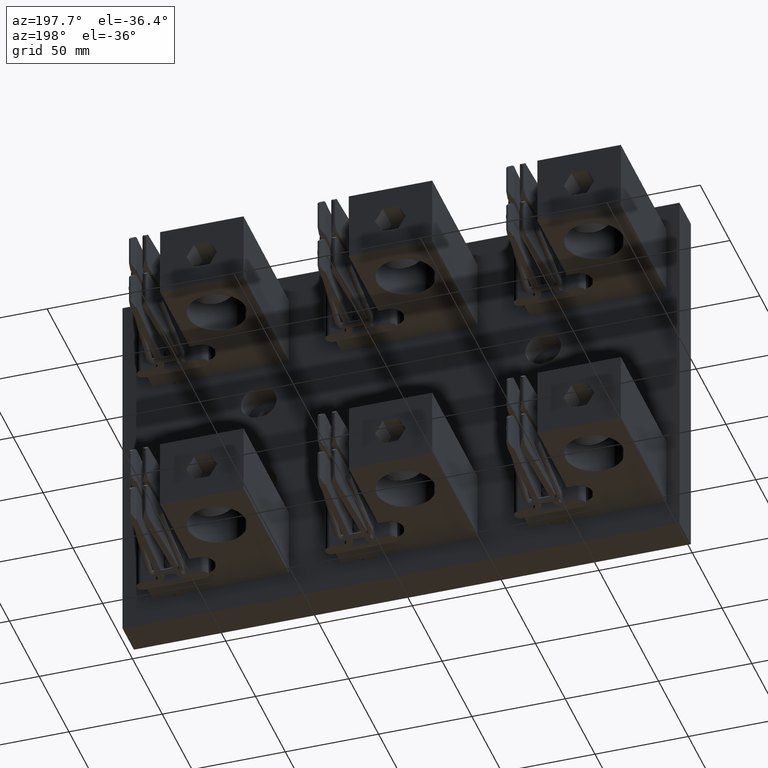
[diagram: clean part render]
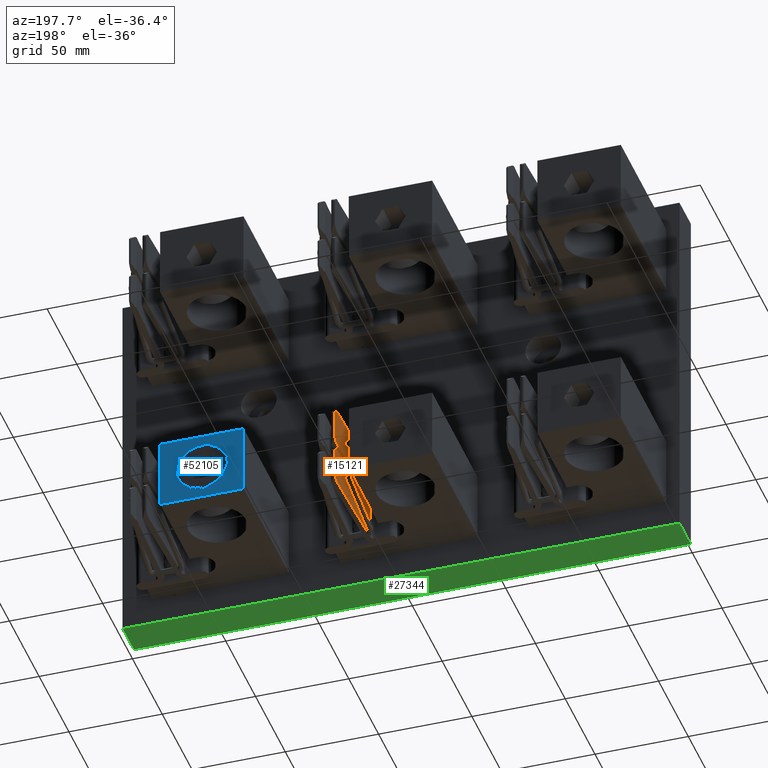
[diagram: same view with three faces highlighted in distinct colors, each labeled with its STEP entity id]
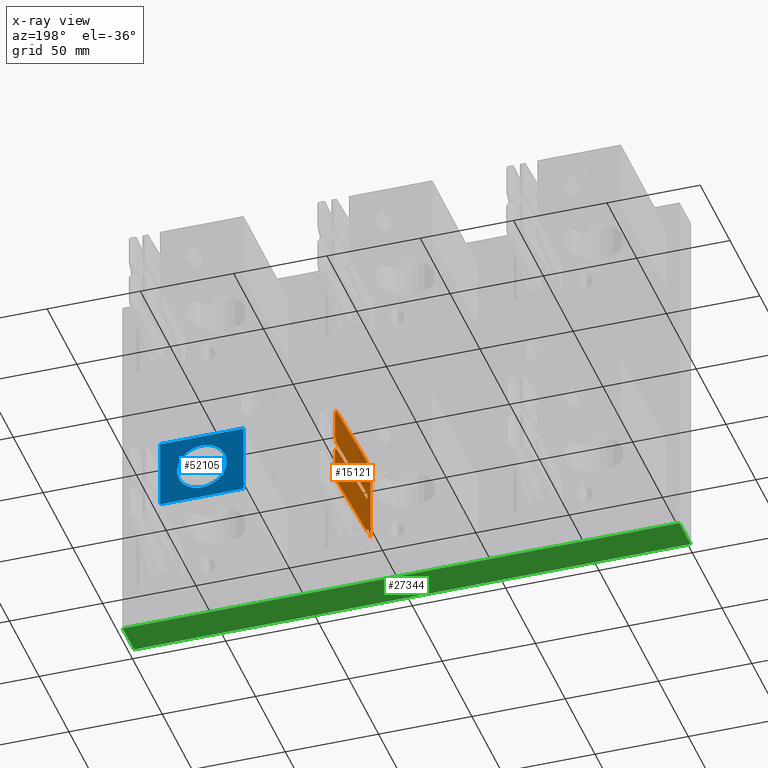
[diagram: x-ray of the same camera — body ghosted, the three highlighted faces saturated]
A machine part, auxiliary view with three faces highlighted in distinct colors.
The next image is the same camera in x-ray (body ghosted, the three faces saturated) — at least one of them is partly hidden behind the body in this view.
Their STEP definitions:

[orange] entity #15121 — the highlighted planar face has unit normal (0.9994, -0.0353, 0).
#344 = VECTOR ( 'NONE', #70280, 39.37007874015748100 ) ;
#1004 = CARTESIAN_POINT ( 'NONE',  ( 0.3907362016212907500, 1.781000000000000100, -1.775000000000034800 ) ) ;
#1033 = ORIENTED_EDGE ( 'NONE', *, *, #25767, .F. ) ;
#3256 = CARTESIAN_POINT ( 'NONE',  ( 0.3919719498710013700, 1.816000000000000300, -2.719000000000034500 ) ) ;
#3266 = CARTESIAN_POINT ( 'NONE',  ( 0.3829607690644798400, 1.560777038280820800, -1.775000000000035000 ) ) ;
#4341 = ORIENTED_EDGE ( 'NONE', *, *, #36690, .T. ) ;
#4421 = EDGE_CURVE ( 'NONE', #34799, #20561, #51824, .T. ) ;
#8850 = VERTEX_POINT ( 'NONE', #38776 ) ;
#9088 = CARTESIAN_POINT ( 'NONE',  ( 0.4579609064050201800, 3.685000000000000500, -2.819000000000033700 ) ) ;
#10812 = VECTOR ( 'NONE', #71252, 39.37007874015748900 ) ;
#10904 = VECTOR ( 'NONE', #50974, 39.37007874015748900 ) ;
#10925 = CARTESIAN_POINT ( 'NONE',  ( 0.4544301971201599700, 3.585000000000000000, -2.719000000000034100 ) ) ;
#11298 = CARTESIAN_POINT ( 'NONE',  ( 0.3919719498709998700, 1.816000000000000100, -2.581000000000035000 ) ) ;
#11306 = VECTOR ( 'NONE', #12172, 39.37007874015748100 ) ;
#11329 = EDGE_CURVE ( 'NONE', #12467, #17070, #37583, .T. ) ;
#11361 = DIRECTION ( 'NONE',  ( -1.047444401652940000E-014, -0.0000000000000000000, 1.000000000000000000 ) ) ;
#11364 = VECTOR ( 'NONE', #20186, 39.37007874015748100 ) ;
#11374 = VERTEX_POINT ( 'NONE', #11298 ) ;
#12172 = DIRECTION ( 'NONE',  ( 0.02495810785192913200, 0.7068865159459675200, -0.7068865159459634100 ) ) ;
#12467 = VERTEX_POINT ( 'NONE', #56773 ) ;
#13032 = VECTOR ( 'NONE', #47612, 39.37007874015748900 ) ;
#13338 = CARTESIAN_POINT ( 'NONE',  ( 0.3829607690644981600, 1.560777038280820800, -3.525000000000034600 ) ) ;
#14703 = DIRECTION ( 'NONE',  ( 0.03528510665364335800, 0.9993772867383173800, 2.463408634201292000E-016 ) ) ;
#15077 = LINE ( 'NONE', #41556, #13032 ) ;
#15121 = ADVANCED_FACE ( 'NONE', ( #81225 ), #76109, .F. ) ;
#15135 = VERTEX_POINT ( 'NONE', #76931 ) ;
#15470 = LINE ( 'NONE', #26619, #32519 ) ;
#16398 = CARTESIAN_POINT ( 'NONE',  ( 0.3907362016213070700, 1.780999999999999900, -3.337000000000034800 ) ) ;
#17070 = VERTEX_POINT ( 'NONE', #10925 ) ;
#17544 = VERTEX_POINT ( 'NONE', #50888 ) ;
#18912 = LINE ( 'NONE', #24043, #33954 ) ;
#19295 = CARTESIAN_POINT ( 'NONE',  ( 0.4579609064050275700, 3.685000000000000500, -3.525000000000034100 ) ) ;
#20186 = DIRECTION ( 'NONE',  ( -0.03528510665364335800, -0.9993772867383173800, -4.928428851015836000E-016 ) ) ;
#20225 = LINE ( 'NONE', #13338, #37278 ) ;
#20561 = VERTEX_POINT ( 'NONE', #41010 ) ;
#22854 = CARTESIAN_POINT ( 'NONE',  ( 0.3840984681657718700, 1.593000000000000200, -3.337000000000034800 ) ) ;
#23418 = CARTESIAN_POINT ( 'NONE',  ( 0.4579609064050092500, 3.685000000000000500, -1.775000000000033900 ) ) ;
#23650 = CARTESIAN_POINT ( 'NONE',  ( 0.4579609064050275700, 3.685000000000000500, -3.525000000000034100 ) ) ;
#24043 = CARTESIAN_POINT ( 'NONE',  ( 0.4579609064050275700, 3.685000000000000500, -3.525000000000034100 ) ) ;
#25767 = EDGE_CURVE ( 'NONE', #76533, #63595, #82778, .T. ) ;
#25776 = DIRECTION ( 'NONE',  ( -0.03528510665364335100, -0.9993772867383173800, -3.695918742608563300E-016 ) ) ;
#26258 = ORIENTED_EDGE ( 'NONE', *, *, #35913, .T. ) ;
#26619 = CARTESIAN_POINT ( 'NONE',  ( 0.4541524240130747100, 3.577132654243585700, -3.532867345756449200 ) ) ;
#26738 = ORIENTED_EDGE ( 'NONE', *, *, #56108, .T. ) ;
#28405 = LINE ( 'NONE', #29322, #11306 ) ;
#28564 = ORIENTED_EDGE ( 'NONE', *, *, #76605, .F. ) ;
#28799 = CARTESIAN_POINT ( 'NONE',  ( 0.3870995710578942200, 1.678000000000001000, -2.581000000000035500 ) ) ;
#29322 = CARTESIAN_POINT ( 'NONE',  ( 0.4579609064050201800, 3.685000000000000500, -2.819000000000033700 ) ) ;
#30133 = ORIENTED_EDGE ( 'NONE', *, *, #36211, .T. ) ;
#31990 = CARTESIAN_POINT ( 'NONE',  ( 0.4579609064050275700, 3.685000000000000500, -3.525000000000034100 ) ) ;
#32244 =( BOUNDED_CURVE ( )  B_SPLINE_CURVE ( 3, ( #61180, #16398, #22854, #67605 ),
 .UNSPECIFIED., .F., .T. ) 
 B_SPLINE_CURVE_WITH_KNOTS ( ( 4, 4 ),
 ( 0.0000000000000000000, 3.141592653589792700 ),
 .UNSPECIFIED. ) 
 CURVE ( )  GEOMETRIC_REPRESENTATION_ITEM ( )  RATIONAL_B_SPLINE_CURVE ( ( 1.000000000000000000, 0.3333333333333335400, 0.3333333333333335400, 1.000000000000000000 ) ) 
 REPRESENTATION_ITEM ( '' )  );
#32519 = VECTOR ( 'NONE', #64942, 39.37007874015748900 ) ;
#32973 = CARTESIAN_POINT ( 'NONE',  ( 0.4540786095160803700, 3.575042012079955100, -2.590957987920078600 ) ) ;
#33842 = VECTOR ( 'NONE', #68420, 39.37007874015748900 ) ;
#33954 = VECTOR ( 'NONE', #11361, 39.37007874015748100 ) ;
#34586 = ORIENTED_EDGE ( 'NONE', *, *, #68956, .T. ) ;
#34799 = VERTEX_POINT ( 'NONE', #51899 ) ;
#34800 = ORIENTED_EDGE ( 'NONE', *, *, #62272, .T. ) ;
#35913 = EDGE_CURVE ( 'NONE', #15135, #17544, #15470, .T. ) ;
#36211 = EDGE_CURVE ( 'NONE', #17070, #45397, #28405, .T. ) ;
#36332 = CARTESIAN_POINT ( 'NONE',  ( 0.4579609064050191300, 3.685000000000000500, -2.719000000000034100 ) ) ;
#36690 = EDGE_CURVE ( 'NONE', #8850, #34799, #41305, .T. ) ;
#37278 = VECTOR ( 'NONE', #45810, 39.37007874015748100 ) ;
#37583 = LINE ( 'NONE', #36332, #52524 ) ;
#38776 = CARTESIAN_POINT ( 'NONE',  ( 0.3907362016212907500, 1.781000000000000100, -1.775000000000034800 ) ) ;
#39062 = EDGE_CURVE ( 'NONE', #46689, #61378, #76966, .T. ) ;
#39422 = CARTESIAN_POINT ( 'NONE',  ( 0.3907362016212927400, 1.780999999999999900, -1.963000000000034100 ) ) ;
#41010 = CARTESIAN_POINT ( 'NONE',  ( 0.4579609064050102500, 3.685000000000000500, -1.875000000000034400 ) ) ;
#41305 = LINE ( 'NONE', #23418, #58302 ) ;
#41556 = CARTESIAN_POINT ( 'NONE',  ( 0.4579609064050092500, 3.685000000000000500, -1.775000000000033900 ) ) ;
#41738 = CARTESIAN_POINT ( 'NONE',  ( 0.3870995710578957200, 1.678000000000001000, -2.719000000000034500 ) ) ;
#42925 = CARTESIAN_POINT ( 'NONE',  ( 0.4579609064050102500, 3.685000000000000500, -1.875000000000034400 ) ) ;
#43483 = DIRECTION ( 'NONE',  ( 0.02495810785192905900, 0.7068865159459655200, -0.7068865159459653000 ) ) ;
#43944 = ORIENTED_EDGE ( 'NONE', *, *, #60796, .F. ) ;
#44055 = EDGE_CURVE ( 'NONE', #55925, #63595, #32244, .T. ) ;
#44146 = VERTEX_POINT ( 'NONE', #56954 ) ;
#44363 = CARTESIAN_POINT ( 'NONE',  ( 0.4544301971201585300, 3.584999999999999500, -2.581000000000034200 ) ) ;
#45397 = VERTEX_POINT ( 'NONE', #9088 ) ;
#45810 = DIRECTION ( 'NONE',  ( -1.047444401652940000E-014, -0.0000000000000000000, 1.000000000000000000 ) ) ;
#46033 =( BOUNDED_CURVE ( )  B_SPLINE_CURVE ( 3, ( #58454, #64880, #39422, #1004 ),
 .UNSPECIFIED., .F., .T. ) 
 B_SPLINE_CURVE_WITH_KNOTS ( ( 4, 4 ),
 ( 3.141592653589795300, 6.283185307179586200 ),
 .UNSPECIFIED. ) 
 CURVE ( )  GEOMETRIC_REPRESENTATION_ITEM ( )  RATIONAL_B_SPLINE_CURVE ( ( 1.000000000000000000, 0.3333333333333341500, 0.3333333333333341500, 1.000000000000000000 ) ) 
 REPRESENTATION_ITEM ( '' )  );
#46493 = ORIENTED_EDGE ( 'NONE', *, *, #50702, .F. ) ;
#46689 = VERTEX_POINT ( 'NONE', #56231 ) ;
#47140 = ORIENTED_EDGE ( 'NONE', *, *, #68837, .T. ) ;
#47612 = DIRECTION ( 'NONE',  ( 0.03528510665364335100, 0.9993772867383173800, 3.695918742608563300E-016 ) ) ;
#48778 = VECTOR ( 'NONE', #43483, 39.37007874015748900 ) ;
#50571 = CARTESIAN_POINT ( 'NONE',  ( 0.3907362016213090600, 1.781000000000000100, -3.525000000000034600 ) ) ;
#50702 = EDGE_CURVE ( 'NONE', #46689, #20561, #66525, .T. ) ;
#50888 = CARTESIAN_POINT ( 'NONE',  ( 0.4544301971201683600, 3.585000000000000000, -3.525000000000034100 ) ) ;
#50974 = DIRECTION ( 'NONE',  ( 0.03528510665364335100, 0.9993772867383173800, 3.695918742608563300E-016 ) ) ;
#51717 = ORIENTED_EDGE ( 'NONE', *, *, #39062, .T. ) ;
#51824 = LINE ( 'NONE', #42925, #48778 ) ;
#51899 = CARTESIAN_POINT ( 'NONE',  ( 0.4544301971201500400, 3.585000000000000000, -1.775000000000033900 ) ) ;
#52524 = VECTOR ( 'NONE', #14703, 39.37007874015748100 ) ;
#55925 = VERTEX_POINT ( 'NONE', #50571 ) ;
#56108 = EDGE_CURVE ( 'NONE', #44146, #8850, #46033, .T. ) ;
#56231 = CARTESIAN_POINT ( 'NONE',  ( 0.4579609064050166300, 3.685000000000000500, -2.481000000000032700 ) ) ;
#56591 = ORIENTED_EDGE ( 'NONE', *, *, #11329, .T. ) ;
#56773 = CARTESIAN_POINT ( 'NONE',  ( 0.3919719498710013700, 1.816000000000000300, -2.719000000000034500 ) ) ;
#56954 = CARTESIAN_POINT ( 'NONE',  ( 0.3840984681657554400, 1.593000000000000000, -1.775000000000035000 ) ) ;
#57185 = CARTESIAN_POINT ( 'NONE',  ( 0.3829607690644981600, 1.560777038280820800, -3.525000000000034600 ) ) ;
#58302 = VECTOR ( 'NONE', #67912, 39.37007874015748900 ) ;
#58454 = CARTESIAN_POINT ( 'NONE',  ( 0.3840984681657554400, 1.593000000000000000, -1.775000000000035000 ) ) ;
#58628 = VERTEX_POINT ( 'NONE', #3266 ) ;
#60796 = EDGE_CURVE ( 'NONE', #15135, #45397, #18912, .T. ) ;
#61180 = CARTESIAN_POINT ( 'NONE',  ( 0.3907362016213090600, 1.781000000000000100, -3.525000000000034600 ) ) ;
#61378 = VERTEX_POINT ( 'NONE', #44363 ) ;
#62272 = EDGE_CURVE ( 'NONE', #61378, #11374, #77520, .T. ) ;
#63595 = VERTEX_POINT ( 'NONE', #70170 ) ;
#64081 = DIRECTION ( 'NONE',  ( 0.9993772867383173800, -0.03528510665364335100, 1.046792144133155300E-014 ) ) ;
#64555 =( BOUNDED_CURVE ( )  B_SPLINE_CURVE ( 3, ( #73580, #28799, #41738, #3256 ),
 .UNSPECIFIED., .F., .T. ) 
 B_SPLINE_CURVE_WITH_KNOTS ( ( 4, 4 ),
 ( 1.570796326794900600, 4.712388980384689700 ),
 .UNSPECIFIED. ) 
 CURVE ( )  GEOMETRIC_REPRESENTATION_ITEM ( )  RATIONAL_B_SPLINE_CURVE ( ( 1.000000000000000000, 0.3333333333333347000, 0.3333333333333347000, 1.000000000000000000 ) ) 
 REPRESENTATION_ITEM ( '' )  );
#64880 = CARTESIAN_POINT ( 'NONE',  ( 0.3840984681657575500, 1.593000000000000400, -1.963000000000034500 ) ) ;
#64942 = DIRECTION ( 'NONE',  ( -0.02495810785191422300, -0.7068865159459646300, -0.7068865159459667400 ) ) ;
#64974 = CARTESIAN_POINT ( 'NONE',  ( 0.4579609064050176300, 3.685000000000000500, -2.581000000000034200 ) ) ;
#66525 = LINE ( 'NONE', #76750, #344 ) ;
#67605 = CARTESIAN_POINT ( 'NONE',  ( 0.3840984681657737500, 1.593000000000000000, -3.525000000000034600 ) ) ;
#67912 = DIRECTION ( 'NONE',  ( 0.03528510665364335100, 0.9993772867383173800, 3.695918742608563300E-016 ) ) ;
#68420 = DIRECTION ( 'NONE',  ( 0.03528510665364335100, 0.9993772867383173800, 3.695918742608563300E-016 ) ) ;
#68837 = EDGE_CURVE ( 'NONE', #11374, #12467, #64555, .T. ) ;
#68956 = EDGE_CURVE ( 'NONE', #76533, #58628, #20225, .T. ) ;
#70170 = CARTESIAN_POINT ( 'NONE',  ( 0.3840984681657737500, 1.593000000000000000, -3.525000000000034600 ) ) ;
#70280 = DIRECTION ( 'NONE',  ( -1.047444401652940000E-014, -0.0000000000000000000, 1.000000000000000000 ) ) ;
#70700 = EDGE_LOOP ( 'NONE', ( #4341, #73709, #46493, #51717, #34800, #47140, #56591, #30133, #43944, #26258, #28564, #82506, #1033, #34586, #82578, #26738 ) ) ;
#71252 = DIRECTION ( 'NONE',  ( -0.02495810785191421600, -0.7068865159459646300, -0.7068865159459667400 ) ) ;
#72796 = EDGE_CURVE ( 'NONE', #58628, #44146, #15077, .T. ) ;
#73580 = CARTESIAN_POINT ( 'NONE',  ( 0.3919719498709998700, 1.816000000000000100, -2.581000000000035000 ) ) ;
#73709 = ORIENTED_EDGE ( 'NONE', *, *, #4421, .T. ) ;
#75726 = AXIS2_PLACEMENT_3D ( 'NONE', #19295, #64081, #25776 ) ;
#76109 = PLANE ( 'NONE',  #75726 ) ;
#76533 = VERTEX_POINT ( 'NONE', #57185 ) ;
#76605 = EDGE_CURVE ( 'NONE', #55925, #17544, #79018, .T. ) ;
#76750 = CARTESIAN_POINT ( 'NONE',  ( 0.4579609064050275700, 3.685000000000000500, -3.525000000000034100 ) ) ;
#76931 = CARTESIAN_POINT ( 'NONE',  ( 0.4579609064050265100, 3.685000000000000500, -3.425000000000033600 ) ) ;
#76966 = LINE ( 'NONE', #32973, #10812 ) ;
#77520 = LINE ( 'NONE', #64974, #11364 ) ;
#79018 = LINE ( 'NONE', #31990, #10904 ) ;
#81225 = FACE_OUTER_BOUND ( 'NONE', #70700, .T. ) ;
#82506 = ORIENTED_EDGE ( 'NONE', *, *, #44055, .T. ) ;
#82578 = ORIENTED_EDGE ( 'NONE', *, *, #72796, .T. ) ;
#82778 = LINE ( 'NONE', #23650, #33842 ) ;

[blue] entity #52105 — the highlighted planar face has unit normal (0, -1, 0).
#1489 = EDGE_CURVE ( 'NONE', #71809, #71809, #80337, .T. ) ;
#7381 = EDGE_CURVE ( 'NONE', #48201, #11645, #53351, .T. ) ;
#8772 = EDGE_LOOP ( 'NONE', ( #50706, #33810, #26646, #48400 ) ) ;
#11645 = VERTEX_POINT ( 'NONE', #64523 ) ;
#13812 = VERTEX_POINT ( 'NONE', #72711 ) ;
#15142 = VECTOR ( 'NONE', #22915, 39.37007874015748100 ) ;
#20723 = CARTESIAN_POINT ( 'NONE',  ( 2.721549999999999700, 3.750000000000001300, -2.650000000000000800 ) ) ;
#21355 = VECTOR ( 'NONE', #47354, 39.37007874015748100 ) ;
#21801 = CARTESIAN_POINT ( 'NONE',  ( 4.124999999999999100, 3.750000000000001300, -1.900000000000000800 ) ) ;
#22507 = CARTESIAN_POINT ( 'NONE',  ( 2.364999999999999300, 3.750000000000000900, -1.900000000000001200 ) ) ;
#22915 = DIRECTION ( 'NONE',  ( -1.000000000000000000, -3.104372720073025900E-016, -3.196228004487266600E-016 ) ) ;
#24370 = FACE_OUTER_BOUND ( 'NONE', #8772, .T. ) ;
#26646 = ORIENTED_EDGE ( 'NONE', *, *, #81871, .F. ) ;
#27573 = ORIENTED_EDGE ( 'NONE', *, *, #1489, .F. ) ;
#28226 = DIRECTION ( 'NONE',  ( 1.000000000000000000, 3.104372720073026400E-016, 3.196228004487266600E-016 ) ) ;
#28809 = VECTOR ( 'NONE', #56569, 39.37007874015748100 ) ;
#29393 = AXIS2_PLACEMENT_3D ( 'NONE', #35569, #50908, #65974 ) ;
#33810 = ORIENTED_EDGE ( 'NONE', *, *, #44522, .F. ) ;
#34433 = PLANE ( 'NONE',  #38346 ) ;
#35569 = CARTESIAN_POINT ( 'NONE',  ( 3.244999999999999200, 3.750000000000001300, -2.650000000000000800 ) ) ;
#38346 = AXIS2_PLACEMENT_3D ( 'NONE', #21801, #66602, #28226 ) ;
#40511 = VECTOR ( 'NONE', #60847, 39.37007874015748100 ) ;
#41426 = FACE_BOUND ( 'NONE', #45038, .T. ) ;
#42538 = LINE ( 'NONE', #22507, #40511 ) ;
#44522 = EDGE_CURVE ( 'NONE', #13812, #11645, #42538, .T. ) ;
#45038 = EDGE_LOOP ( 'NONE', ( #27573 ) ) ;
#47354 = DIRECTION ( 'NONE',  ( -1.000000000000000000, -3.104372720073025900E-016, -3.196228004487266600E-016 ) ) ;
#48201 = VERTEX_POINT ( 'NONE', #77247 ) ;
#48400 = ORIENTED_EDGE ( 'NONE', *, *, #82978, .T. ) ;
#50706 = ORIENTED_EDGE ( 'NONE', *, *, #7381, .T. ) ;
#50908 = DIRECTION ( 'NONE',  ( -3.104372720073027400E-016, 1.000000000000000000, -9.922283024263720900E-032 ) ) ;
#50941 = VERTEX_POINT ( 'NONE', #65483 ) ;
#52105 = ADVANCED_FACE ( 'NONE', ( #41426, #24370 ), #34433, .F. ) ;
#53351 = LINE ( 'NONE', #57795, #21355 ) ;
#56569 = DIRECTION ( 'NONE',  ( 3.196228004487266600E-016, -0.0000000000000000000, -1.000000000000000000 ) ) ;
#57795 = CARTESIAN_POINT ( 'NONE',  ( 4.125000000000000000, 3.750000000000001300, -3.400000000000000800 ) ) ;
#60847 = DIRECTION ( 'NONE',  ( 3.196228004487266600E-016, -0.0000000000000000000, -1.000000000000000000 ) ) ;
#61247 = CARTESIAN_POINT ( 'NONE',  ( 4.124999999999999100, 3.750000000000001300, -1.900000000000000800 ) ) ;
#62480 = CARTESIAN_POINT ( 'NONE',  ( 4.124999999999999100, 3.750000000000001300, -1.900000000000000800 ) ) ;
#62876 = LINE ( 'NONE', #62480, #28809 ) ;
#64237 = LINE ( 'NONE', #61247, #15142 ) ;
#64523 = CARTESIAN_POINT ( 'NONE',  ( 2.364999999999999800, 3.750000000000000900, -3.400000000000002100 ) ) ;
#65483 = CARTESIAN_POINT ( 'NONE',  ( 4.124999999999999100, 3.750000000000001300, -1.900000000000000800 ) ) ;
#65974 = DIRECTION ( 'NONE',  ( -1.000000000000000000, 0.0000000000000000000, 0.0000000000000000000 ) ) ;
#66602 = DIRECTION ( 'NONE',  ( 3.104372720073026400E-016, -1.000000000000000000, 9.922283024263716500E-032 ) ) ;
#71809 = VERTEX_POINT ( 'NONE', #20723 ) ;
#72711 = CARTESIAN_POINT ( 'NONE',  ( 2.364999999999999300, 3.750000000000000900, -1.900000000000001200 ) ) ;
#77247 = CARTESIAN_POINT ( 'NONE',  ( 4.125000000000000000, 3.750000000000001300, -3.400000000000000800 ) ) ;
#80337 = CIRCLE ( 'NONE', #29393, 0.5234499999999995300 ) ;
#81871 = EDGE_CURVE ( 'NONE', #50941, #13812, #64237, .T. ) ;
#82978 = EDGE_CURVE ( 'NONE', #50941, #48201, #62876, .T. ) ;

[green] entity #27344 — the highlighted planar face has unit normal (0, -0, 1).
#6849 = LINE ( 'NONE', #65098, #53949 ) ;
#8012 = DIRECTION ( 'NONE',  ( -0.0000000000000000000, -1.000000000000000000, -0.0000000000000000000 ) ) ;
#9910 = VECTOR ( 'NONE', #67939, 39.37007874015748100 ) ;
#11689 = EDGE_CURVE ( 'NONE', #66710, #49641, #28413, .T. ) ;
#13555 = DIRECTION ( 'NONE',  ( -1.000000000000000000, 0.0000000000000000000, 9.299908063537917900E-017 ) ) ;
#16108 = ORIENTED_EDGE ( 'NONE', *, *, #11689, .T. ) ;
#16500 = EDGE_CURVE ( 'NONE', #49641, #66507, #27018, .T. ) ;
#20213 = LINE ( 'NONE', #46351, #54240 ) ;
#23656 = DIRECTION ( 'NONE',  ( 9.299908063537920400E-017, -0.0000000000000000000, 1.000000000000000000 ) ) ;
#27018 = LINE ( 'NONE', #35788, #9910 ) ;
#27344 = ADVANCED_FACE ( 'NONE', ( #47217 ), #68150, .F. ) ;
#28413 = LINE ( 'NONE', #73426, #43481 ) ;
#28637 = EDGE_CURVE ( 'NONE', #66710, #39234, #6849, .T. ) ;
#32625 = DIRECTION ( 'NONE',  ( -0.0000000000000000000, -1.000000000000000000, -0.0000000000000000000 ) ) ;
#34766 = CARTESIAN_POINT ( 'NONE',  ( 5.874999999999999100, 0.7500000000000001100, -4.000000000000001800 ) ) ;
#35788 = CARTESIAN_POINT ( 'NONE',  ( 5.874999999999999100, 0.0000000000000000000, -4.000000000000001800 ) ) ;
#37055 = AXIS2_PLACEMENT_3D ( 'NONE', #61994, #23656, #68425 ) ;
#39234 = VERTEX_POINT ( 'NONE', #53331 ) ;
#43481 = VECTOR ( 'NONE', #32625, 39.37007874015748100 ) ;
#46351 = CARTESIAN_POINT ( 'NONE',  ( -5.875000000000000900, 0.7500000000000001100, -4.000000000000000900 ) ) ;
#47217 = FACE_OUTER_BOUND ( 'NONE', #82133, .T. ) ;
#48972 = ORIENTED_EDGE ( 'NONE', *, *, #57377, .F. ) ;
#49641 = VERTEX_POINT ( 'NONE', #62714 ) ;
#53331 = CARTESIAN_POINT ( 'NONE',  ( -5.875000000000000900, 0.7500000000000001100, -4.000000000000000900 ) ) ;
#53949 = VECTOR ( 'NONE', #13555, 39.37007874015748100 ) ;
#54240 = VECTOR ( 'NONE', #8012, 39.37007874015748100 ) ;
#57377 = EDGE_CURVE ( 'NONE', #39234, #66507, #20213, .T. ) ;
#61691 = ORIENTED_EDGE ( 'NONE', *, *, #16500, .T. ) ;
#61994 = CARTESIAN_POINT ( 'NONE',  ( 5.874999999999999100, 0.7500000000000001100, -4.000000000000001800 ) ) ;
#62714 = CARTESIAN_POINT ( 'NONE',  ( 5.874999999999999100, 0.0000000000000000000, -4.000000000000001800 ) ) ;
#65098 = CARTESIAN_POINT ( 'NONE',  ( 5.874999999999999100, 0.7500000000000001100, -4.000000000000001800 ) ) ;
#66507 = VERTEX_POINT ( 'NONE', #77813 ) ;
#66710 = VERTEX_POINT ( 'NONE', #34766 ) ;
#67939 = DIRECTION ( 'NONE',  ( -1.000000000000000000, 0.0000000000000000000, 9.299908063537917900E-017 ) ) ;
#68150 = PLANE ( 'NONE',  #37055 ) ;
#68425 = DIRECTION ( 'NONE',  ( 1.000000000000000000, 0.0000000000000000000, -9.299908063537920400E-017 ) ) ;
#73426 = CARTESIAN_POINT ( 'NONE',  ( 5.874999999999999100, 0.7500000000000001100, -4.000000000000001800 ) ) ;
#77813 = CARTESIAN_POINT ( 'NONE',  ( -5.875000000000000900, 0.0000000000000000000, -4.000000000000000900 ) ) ;
#80182 = ORIENTED_EDGE ( 'NONE', *, *, #28637, .F. ) ;
#82133 = EDGE_LOOP ( 'NONE', ( #61691, #48972, #80182, #16108 ) ) ;